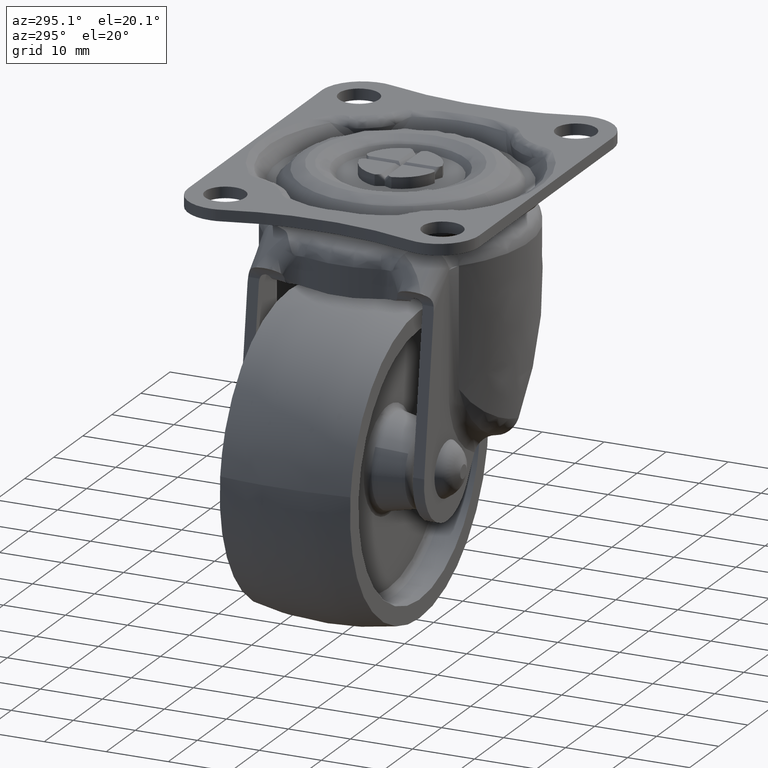
[diagram: clean part render]
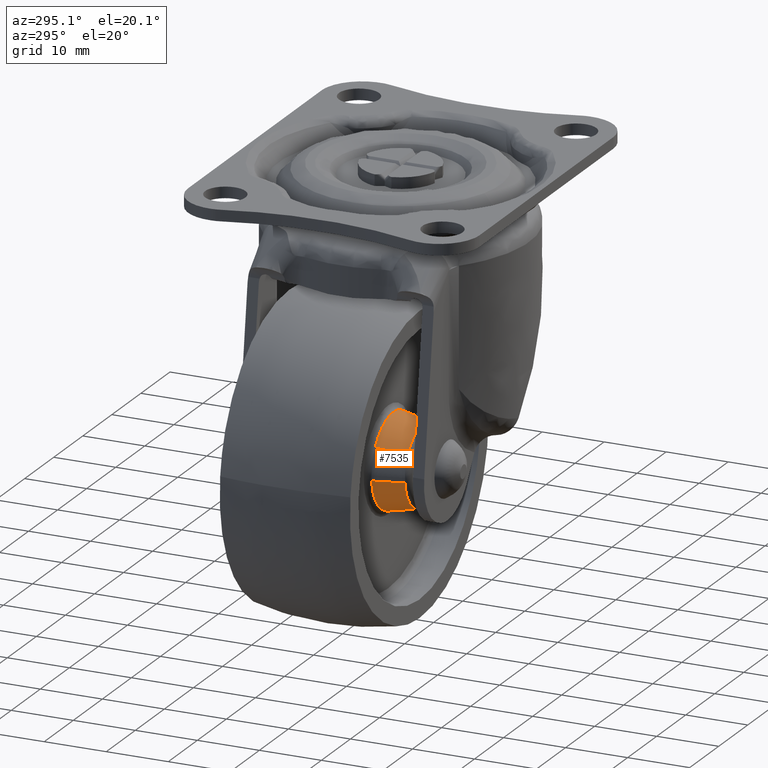
[diagram: same view with one face highlighted and labeled with its STEP entity id]
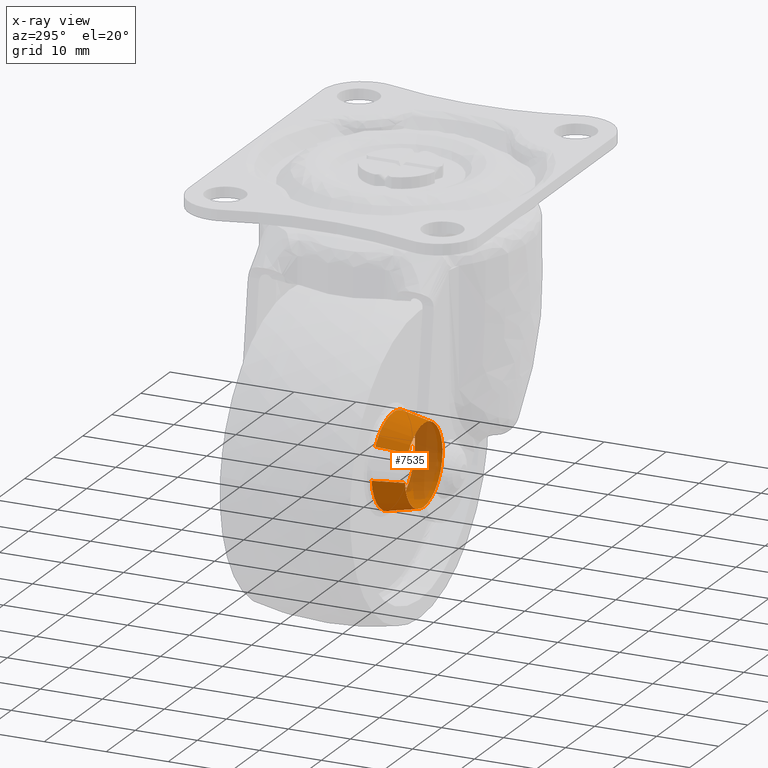
[diagram: x-ray of the same camera — body ghosted, the highlighted face saturated]
A machine part, auxiliary view. The second image highlights one B-rep face of the part: STEP entity #7535.
The next image is the same camera in x-ray: the body ghosted, the highlighted face saturated — about 36% of this face is hidden behind the body in this view.
In plain terms, the highlighted face is a freeform B-spline surface patch.
Its self-contained STEP definition (entity closure, byte-faithful):
#7339=CARTESIAN_POINT('',(-5.363342127607429,-11.321379395823582,3.591642873368144));
#7340=CARTESIAN_POINT('',(-3.662083291120458,-11.321379395823582,6.132105137963602));
#7341=CARTESIAN_POINT('',(-0.618671802712652,-11.321379395823580,6.425152333455841));
#7342=CARTESIAN_POINT('',(5.806480530743188,-11.321379395823582,7.043824136168493));
#7343=CARTESIAN_POINT('',(6.425152333455841,-11.321379395823580,0.618671802712653));
#7344=CARTESIAN_POINT('',(7.043824136168493,-11.321379395823582,-5.806480530743188));
#7345=CARTESIAN_POINT('',(0.618671802712652,-11.321379395823580,-6.425152333455840));
#7346=CARTESIAN_POINT('',(-5.806480530743188,-11.321379395823582,-7.043824136168492));
#7347=CARTESIAN_POINT('',(-6.425152333455841,-11.321379395823580,-0.618671802712651));
#7348=CARTESIAN_POINT('',(-6.241711583759562,-6.173289379424428,4.179856215406124));
#7349=CARTESIAN_POINT('',(-4.261832856274570,-6.173289379424427,7.136377050317547));
#7350=CARTESIAN_POINT('',(-0.719993404422180,-6.173289379424428,7.477417400004903));
#7351=CARTESIAN_POINT('',(6.757423995582722,-6.173289379424428,8.197410804427083));
#7352=CARTESIAN_POINT('',(7.477417400004902,-6.173289379424428,0.719993404422181));
#7353=CARTESIAN_POINT('',(8.197410804427081,-6.173289379424428,-6.757423995582720));
#7354=CARTESIAN_POINT('',(0.719993404422180,-6.173289379424428,-7.477417400004901));
#7355=CARTESIAN_POINT('',(-6.757423995582722,-6.173289379424428,-8.197410804427081));
#7356=CARTESIAN_POINT('',(-7.477417400004902,-6.173289379424428,-0.719993404422178));
#7364=(BOUNDED_SURFACE()B_SPLINE_SURFACE(2,1,((#7339,#7348),(#7340,#7349),(#7341,#7350),(#7342,#7351),(#7343,#7352),(#7344,#7353),(#7345,#7354),(#7346,#7355),(#7347,#7356)),.UNSPECIFIED.,.F.,.F.,.U.)B_SPLINE_SURFACE_WITH_KNOTS((3,2,2,2,3),(2,2),(0.0,6.969922987710235,19.416214037192798,31.862505086675359,44.308796136157923),(0.0,5.255507459247026),.UNSPECIFIED.)GEOMETRIC_REPRESENTATION_ITEM()RATIONAL_B_SPLINE_SURFACE(((0.855662221768731,0.855662221768731),(0.835979797464467,0.835979797464467),(1.0,1.0),(0.707106781186548,0.707106781186548),(1.0,1.0),(0.707106781186548,0.707106781186548),(1.0,1.0),(0.707106781186548,0.707106781186548),(1.0,1.0)))REPRESENTATION_ITEM('')SURFACE());
#7365=CARTESIAN_POINT('',(-2.306572674081568,-11.198878740978749,6.055611851877544));
#7366=VERTEX_POINT('',#7365);
#7367=CARTESIAN_POINT('',(-5.384243245019085,-11.198878740614420,3.605639621595051));
#7368=VERTEX_POINT('',#7367);
#7369=CARTESIAN_POINT('',(-2.306572674081568,-11.198878740978753,6.055611851877545));
#7370=CARTESIAN_POINT('',(-4.235637292339646,-11.198878740750466,5.320834286262549));
#7371=CARTESIAN_POINT('',(-5.384243245019085,-11.198878740614415,3.605639621595051));
#7379=(BOUNDED_CURVE()B_SPLINE_CURVE(2,(#7369,#7370,#7371),.UNSPECIFIED.,.F.,.U.)B_SPLINE_CURVE_WITH_KNOTS((3,3),(0.560447230666698,0.654565963839775),.UNSPECIFIED.)CURVE()GEOMETRIC_REPRESENTATION_ITEM()RATIONAL_B_SPLINE_CURVE((0.892609506585756,0.835665208179385,0.861746398575280))REPRESENTATION_ITEM(''));
#7380=EDGE_CURVE('',#7366,#7368,#7379,.T.);
#7381=ORIENTED_EDGE('',*,*,#7380,.F.);
#7382=CARTESIAN_POINT('',(0.0,-11.198878740484860,6.480024105103200));
#7383=VERTEX_POINT('',#7382);
#7384=CARTESIAN_POINT('',(0.0,-11.198878740484860,6.480024105103200));
#7385=CARTESIAN_POINT('',(-1.192332529439405,-11.198878740484865,6.480024105103199));
#7386=CARTESIAN_POINT('',(-2.306572674081568,-11.198878740978753,6.055611851877545));
#7394=(BOUNDED_CURVE()B_SPLINE_CURVE(2,(#7384,#7385,#7386),.UNSPECIFIED.,.F.,.U.)B_SPLINE_CURVE_WITH_KNOTS((3,3),(0.500000000000000,0.560447230666698),.UNSPECIFIED.)CURVE()GEOMETRIC_REPRESENTATION_ITEM()RATIONAL_B_SPLINE_CURVE((1.0,0.929181664166686,0.892609506585756))REPRESENTATION_ITEM(''));
#7395=EDGE_CURVE('',#7383,#7366,#7394,.T.);
#7396=ORIENTED_EDGE('',*,*,#7395,.F.);
#7397=CARTESIAN_POINT('',(6.365245062707018,-11.198878741060961,1.214235435526117));
#7398=VERTEX_POINT('',#7397);
#7399=CARTESIAN_POINT('',(6.365245062707018,-11.198878741060966,1.214235435526117));
#7400=CARTESIAN_POINT('',(5.360742151057298,-11.198878740484860,6.480024105103199));
#7401=CARTESIAN_POINT('',(0.0,-11.198878740484860,6.480024105103200));
#7409=(BOUNDED_CURVE()B_SPLINE_CURVE(2,(#7399,#7400,#7401),.UNSPECIFIED.,.F.,.U.)B_SPLINE_CURVE_WITH_KNOTS((3,3),(0.282161366269223,0.500000000000000),.UNSPECIFIED.)CURVE()GEOMETRIC_REPRESENTATION_ITEM()RATIONAL_B_SPLINE_CURVE((0.934335795143331,0.744786165538672,1.0))REPRESENTATION_ITEM(''));
#7410=EDGE_CURVE('',#7398,#7383,#7409,.T.);
#7411=ORIENTED_EDGE('',*,*,#7410,.F.);
#7412=CARTESIAN_POINT('',(0.0,-11.198878740484860,-6.480024105103198));
#7413=VERTEX_POINT('',#7412);
#7414=CARTESIAN_POINT('',(0.0,-11.198878740484860,-6.480024105103198));
#7415=CARTESIAN_POINT('',(6.480024105103199,-11.198878740484860,-6.480024105103198));
#7416=CARTESIAN_POINT('',(6.480024105103199,-11.198878740484860,1.224606E-015));
#7417=CARTESIAN_POINT('',(6.480024105103198,-11.198878740484860,0.612542624836541));
#7418=CARTESIAN_POINT('',(6.365245062707018,-11.198878741060959,1.214235435526117));
#7426=(BOUNDED_CURVE()B_SPLINE_CURVE(2,(#7414,#7415,#7416,#7417,#7418),.UNSPECIFIED.,.F.,.U.)B_SPLINE_CURVE_WITH_KNOTS((3,2,3),(0.0,0.250000000000000,0.282161366269223),.UNSPECIFIED.)CURVE()GEOMETRIC_REPRESENTATION_ITEM()RATIONAL_B_SPLINE_CURVE((1.0,0.707106781186547,1.0,0.962320615647875,0.934335795143330))REPRESENTATION_ITEM(''));
#7427=EDGE_CURVE('',#7413,#7398,#7426,.T.);
#7428=ORIENTED_EDGE('',*,*,#7427,.F.);
#7429=CARTESIAN_POINT('',(-6.450191359544879,-11.198878740478980,-0.621082786741580));
#7430=VERTEX_POINT('',#7429);
#7431=CARTESIAN_POINT('',(-6.450191359544879,-11.198878740478985,-0.621082786741580));
#7432=CARTESIAN_POINT('',(-5.886039476482512,-11.198878740484858,-6.480024105103197));
#7433=CARTESIAN_POINT('',(0.0,-11.198878740484860,-6.480024105103198));
#7441=(BOUNDED_CURVE()B_SPLINE_CURVE(2,(#7431,#7432,#7433),.UNSPECIFIED.,.F.,.U.)B_SPLINE_CURVE_WITH_KNOTS((3,3),(0.766651095236601,1.0),.UNSPECIFIED.)CURVE()GEOMETRIC_REPRESENTATION_ITEM()RATIONAL_B_SPLINE_CURVE((0.963582689688609,0.726614752709017,1.0))REPRESENTATION_ITEM(''));
#7442=EDGE_CURVE('',#7430,#7413,#7441,.T.);
#7443=ORIENTED_EDGE('',*,*,#7442,.F.);
#7444=CARTESIAN_POINT('',(-7.451752397250345,-6.298852556032463,-0.717522145861260));
#7445=VERTEX_POINT('',#7444);
#7446=CARTESIAN_POINT('',(-6.450191359544879,-11.198878740478980,-0.621082786741580));
#7447=CARTESIAN_POINT('',(-7.451752397250345,-6.298852556032463,-0.717522145861260));
#7448=QUASI_UNIFORM_CURVE('',1,(#7446,#7447),.UNSPECIFIED.,.F.,.U.);
#7449=EDGE_CURVE('',#7430,#7445,#7448,.T.);
#7450=ORIENTED_EDGE('',*,*,#7449,.T.);
#7451=CARTESIAN_POINT('',(0.0,-6.298852556051480,-7.486217457412599));
#7452=VERTEX_POINT('',#7451);
#7453=CARTESIAN_POINT('',(-7.451752397250345,-6.298852556032464,-0.717522145861260));
#7454=CARTESIAN_POINT('',(-6.800001167928554,-6.298852556051481,-7.486217457412599));
#7455=CARTESIAN_POINT('',(0.0,-6.298852556051480,-7.486217457412599));
#7463=(BOUNDED_CURVE()B_SPLINE_CURVE(2,(#7453,#7454,#7455),.UNSPECIFIED.,.F.,.U.)B_SPLINE_CURVE_WITH_KNOTS((3,3),(0.766651095240280,1.0),.UNSPECIFIED.)CURVE()GEOMETRIC_REPRESENTATION_ITEM()RATIONAL_B_SPLINE_CURVE((0.963582689681136,0.726614752713328,1.0))REPRESENTATION_ITEM(''));
#7464=EDGE_CURVE('',#7445,#7452,#7463,.T.);
#7465=ORIENTED_EDGE('',*,*,#7464,.T.);
#7466=CARTESIAN_POINT('',(7.335407999376855,-6.298852553593212,1.495072342699589));
#7467=VERTEX_POINT('',#7466);
#7468=CARTESIAN_POINT('',(0.0,-6.298852556051480,-7.486217457412599));
#7469=CARTESIAN_POINT('',(7.486217457412600,-6.298852556051480,-7.486217457412598));
#7470=CARTESIAN_POINT('',(7.486217457412600,-6.298852556051480,1.224606E-015));
#7471=CARTESIAN_POINT('',(7.486217457412600,-6.298852556051480,0.755142322592138));
#7472=CARTESIAN_POINT('',(7.335407999376855,-6.298852553593213,1.495072342699588));
#7480=(BOUNDED_CURVE()B_SPLINE_CURVE(2,(#7468,#7469,#7470,#7471,#7472),.UNSPECIFIED.,.F.,.U.)B_SPLINE_CURVE_WITH_KNOTS((3,2,3),(0.0,0.250000000000000,0.284232961493351),.UNSPECIFIED.)CURVE()GEOMETRIC_REPRESENTATION_ITEM()RATIONAL_B_SPLINE_CURVE((1.0,0.707106781186547,1.0,0.959893590874782,0.930770871023325))REPRESENTATION_ITEM(''));
#7481=EDGE_CURVE('',#7452,#7467,#7480,.T.);
#7482=ORIENTED_EDGE('',*,*,#7481,.T.);
#7483=CARTESIAN_POINT('',(0.0,-6.298852556051480,7.486217457412601));
#7484=VERTEX_POINT('',#7483);
#7485=CARTESIAN_POINT('',(7.335407999376855,-6.298852553593213,1.495072342699588));
#7486=CARTESIAN_POINT('',(6.114317725056274,-6.298852556051481,7.486217457412600));
#7487=CARTESIAN_POINT('',(0.0,-6.298852556051480,7.486217457412601));
#7495=(BOUNDED_CURVE()B_SPLINE_CURVE(2,(#7485,#7486,#7487),.UNSPECIFIED.,.F.,.U.)B_SPLINE_CURVE_WITH_KNOTS((3,3),(0.284232961493351,0.500000000000000),.UNSPECIFIED.)CURVE()GEOMETRIC_REPRESENTATION_ITEM()RATIONAL_B_SPLINE_CURVE((0.930770871023325,0.747213190311766,1.0))REPRESENTATION_ITEM(''));
#7496=EDGE_CURVE('',#7467,#7484,#7495,.T.);
#7497=ORIENTED_EDGE('',*,*,#7496,.T.);
#7498=CARTESIAN_POINT('',(-2.332049990684441,-6.298852550556115,7.113718765702893));
#7499=VERTEX_POINT('',#7498);
#7500=CARTESIAN_POINT('',(0.0,-6.298852556051480,7.486217457412601));
#7501=CARTESIAN_POINT('',(-1.195774631187096,-6.298852556051480,7.486217457412603));
#7502=CARTESIAN_POINT('',(-2.332049990684441,-6.298852550556115,7.113718765702893));
#7510=(BOUNDED_CURVE()B_SPLINE_CURVE(2,(#7500,#7501,#7502),.UNSPECIFIED.,.F.,.U.)B_SPLINE_CURVE_WITH_KNOTS((3,3),(0.500000000000000,0.552968606031329),.UNSPECIFIED.)CURVE()GEOMETRIC_REPRESENTATION_ITEM()RATIONAL_B_SPLINE_CURVE((1.0,0.937943417933689,0.902183241044348))REPRESENTATION_ITEM(''));
#7511=EDGE_CURVE('',#7484,#7499,#7510,.T.);
#7512=ORIENTED_EDGE('',*,*,#7511,.T.);
#7513=CARTESIAN_POINT('',(-6.220287937732256,-6.298852554710234,4.165509548031296));
#7514=VERTEX_POINT('',#7513);
#7515=CARTESIAN_POINT('',(-2.332049990684441,-6.298852550556116,7.113718765702893));
#7516=CARTESIAN_POINT('',(-4.784330455165750,-6.298852553170732,6.309801598403896));
#7517=CARTESIAN_POINT('',(-6.220287937732256,-6.298852554710234,4.165509548031297));
#7525=(BOUNDED_CURVE()B_SPLINE_CURVE(2,(#7515,#7516,#7517),.UNSPECIFIED.,.F.,.U.)B_SPLINE_CURVE_WITH_KNOTS((3,3),(0.552968606031330,0.654565963844200),.UNSPECIFIED.)CURVE()GEOMETRIC_REPRESENTATION_ITEM()RATIONAL_B_SPLINE_CURVE((0.902183241044348,0.833592810616012,0.861746398577733))REPRESENTATION_ITEM(''));
#7526=EDGE_CURVE('',#7499,#7514,#7525,.T.);
#7527=ORIENTED_EDGE('',*,*,#7526,.T.);
#7528=CARTESIAN_POINT('',(-5.384243245019085,-11.198878740614420,3.605639621595051));
#7529=CARTESIAN_POINT('',(-6.220287937732256,-6.298852554710234,4.165509548031296));
#7530=QUASI_UNIFORM_CURVE('',1,(#7528,#7529),.UNSPECIFIED.,.F.,.U.);
#7531=EDGE_CURVE('',#7368,#7514,#7530,.T.);
#7532=ORIENTED_EDGE('',*,*,#7531,.F.);
#7533=EDGE_LOOP('',(#7381,#7396,#7411,#7428,#7443,#7450,#7465,#7482,#7497,#7512,#7527,#7532));
#7534=FACE_OUTER_BOUND('',#7533,.T.);
#7535=ADVANCED_FACE('',(#7534),#7364,.T.);